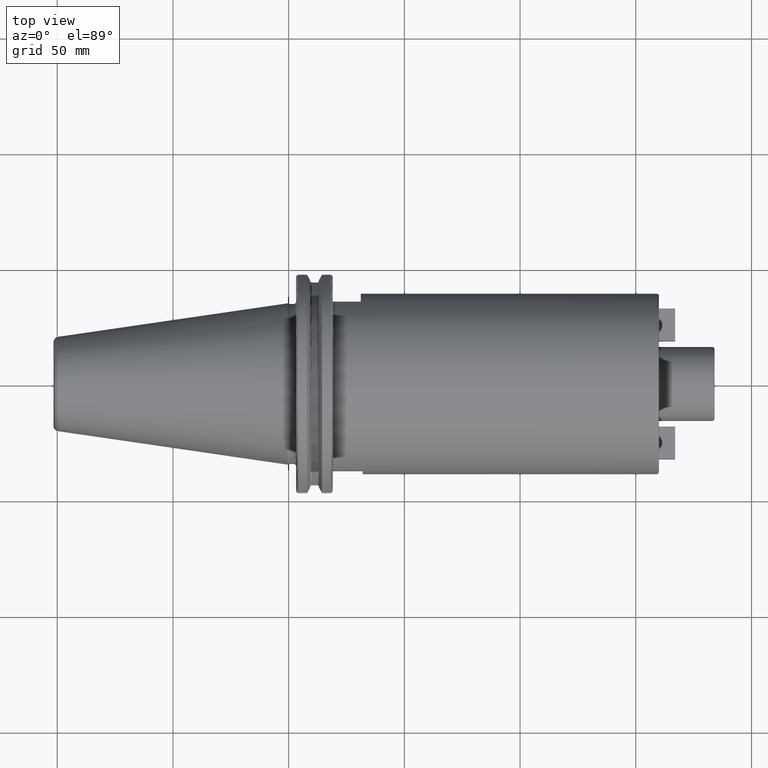
[diagram: clean part render]
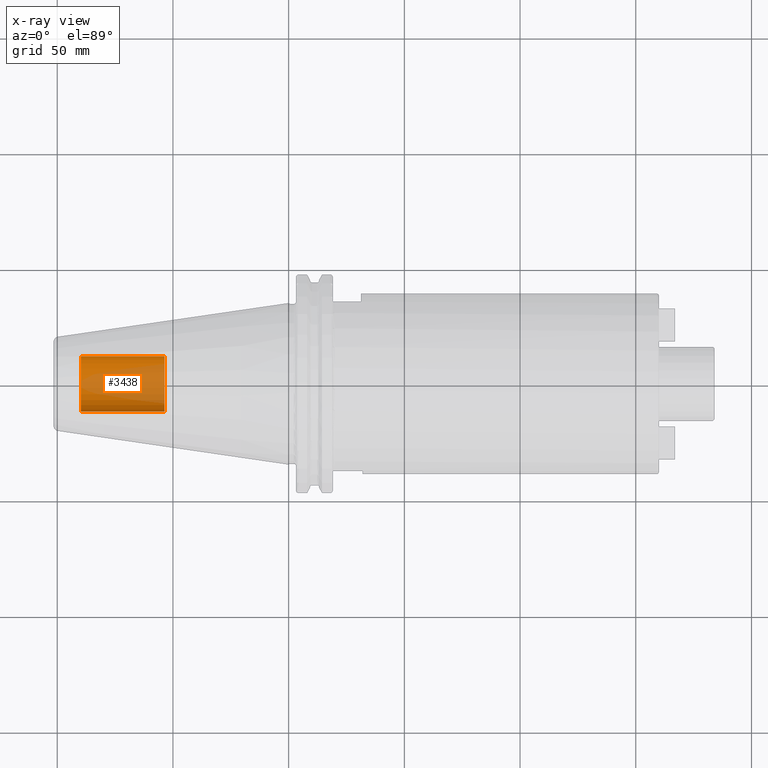
[diagram: x-ray — body ghosted, one internal face saturated and labeled with its STEP entity id]
A machine part, top view, then the same camera in x-ray: the body is ghosted and one INTERNAL B-rep face — a face not visible from any outside direction — is saturated and labeled: STEP entity #3438.
In plain terms, the highlighted cylindrical surface (edge-blend (fillet) strip) has radius 12.0032 mm, axis along (1, 0, 0).
Its self-contained STEP definition (entity closure, byte-faithful):
#3373=CARTESIAN_POINT('',(-8.985E1,0.E0,0.E0));
#3374=DIRECTION('',(-1.E0,0.E0,0.E0));
#3375=DIRECTION('',(0.E0,1.E0,0.E0));
#3376=AXIS2_PLACEMENT_3D('',#3373,#3374,#3375);
#3378=DIRECTION('',(1.E0,0.E0,0.E0));
#3379=VECTOR('',#3378,3.625E1);
#3380=CARTESIAN_POINT('',(-8.985E1,-1.200325E1,0.E0));
#3381=LINE('',#3380,#3379);
#3387=DIRECTION('',(1.E0,0.E0,0.E0));
#3388=VECTOR('',#3387,3.625E1);
#3389=CARTESIAN_POINT('',(-8.985E1,1.200325E1,0.E0));
#3390=LINE('',#3389,#3388);
#3396=CARTESIAN_POINT('',(-5.36E1,0.E0,0.E0));
#3397=DIRECTION('',(1.E0,0.E0,0.E0));
#3398=DIRECTION('',(0.E0,-1.E0,0.E0));
#3399=AXIS2_PLACEMENT_3D('',#3396,#3397,#3398);
#3411=CARTESIAN_POINT('',(-8.985E1,1.200325E1,0.E0));
#3412=CARTESIAN_POINT('',(-8.985E1,-1.200325E1,0.E0));
#3413=VERTEX_POINT('',#3411);
#3414=VERTEX_POINT('',#3412);
#3415=CARTESIAN_POINT('',(-5.36E1,1.200325E1,0.E0));
#3416=CARTESIAN_POINT('',(-5.36E1,-1.200325E1,0.E0));
#3417=VERTEX_POINT('',#3415);
#3418=VERTEX_POINT('',#3416);
#3423=CARTESIAN_POINT('',(-8.985E1,0.E0,0.E0));
#3424=DIRECTION('',(1.E0,0.E0,0.E0));
#3425=DIRECTION('',(0.E0,1.E0,0.E0));
#3426=AXIS2_PLACEMENT_3D('',#3423,#3424,#3425);
#3427=CYLINDRICAL_SURFACE('',#3426,1.200325E1);
#3429=ORIENTED_EDGE('',*,*,#3428,.T.);
#3431=ORIENTED_EDGE('',*,*,#3430,.T.);
#3433=ORIENTED_EDGE('',*,*,#3432,.T.);
#3435=ORIENTED_EDGE('',*,*,#3434,.F.);
#3436=EDGE_LOOP('',(#3429,#3431,#3433,#3435));
#3437=FACE_OUTER_BOUND('',#3436,.F.);
#3438=ADVANCED_FACE('',(#3437),#3427,.T.);
#3377=CIRCLE('',#3376,1.200325E1);
#3400=CIRCLE('',#3399,1.200325E1);
#3428=EDGE_CURVE('',#3413,#3414,#3377,.T.);
#3430=EDGE_CURVE('',#3414,#3418,#3381,.T.);
#3432=EDGE_CURVE('',#3418,#3417,#3400,.T.);
#3434=EDGE_CURVE('',#3413,#3417,#3390,.T.);